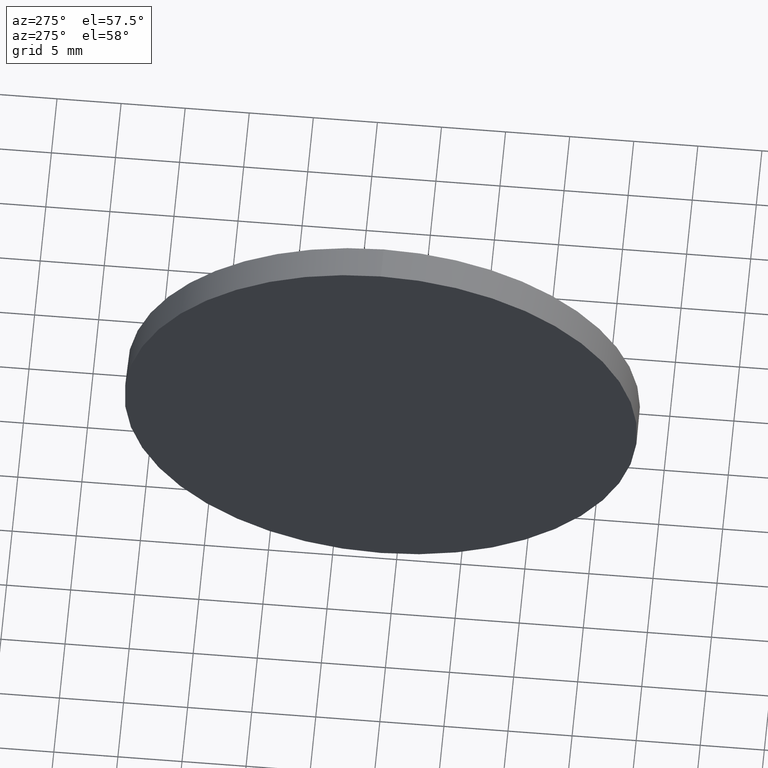
[diagram: clean part render]
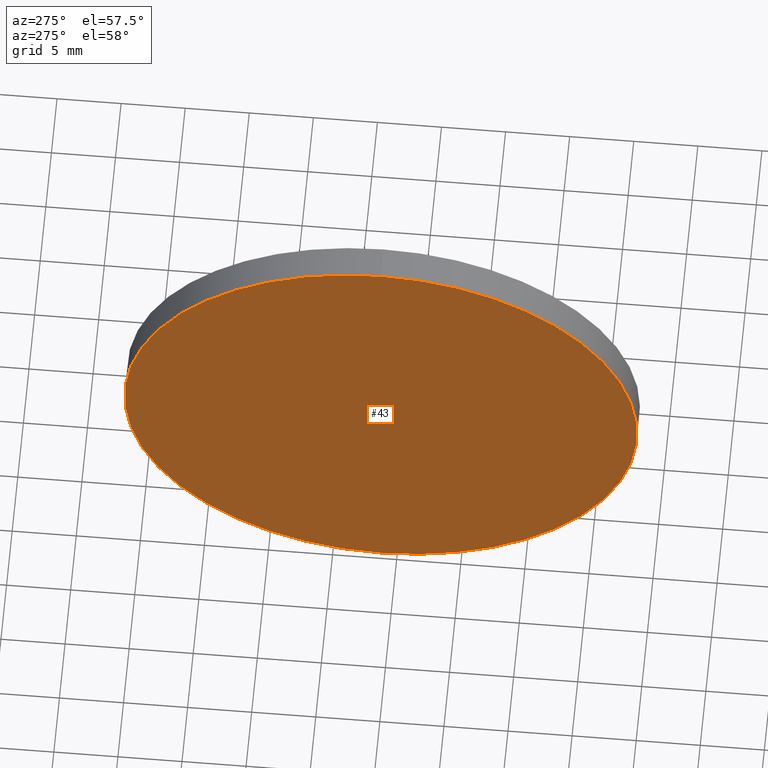
[diagram: same view with one face highlighted and labeled with its STEP entity id]
A machine part, auxiliary view. The second image highlights one B-rep face of the part: STEP entity #43.
In plain terms, the highlighted planar face has unit normal (1, 0, 0).
Its self-contained STEP definition (entity closure, byte-faithful):
#6 = AXIS2_PLACEMENT_3D ( 'NONE', #131, #169, #168 ) ;
#9 = CIRCLE ( 'NONE', #6, 19.99999999999998900 ) ;
#14 = CARTESIAN_POINT ( 'NONE',  ( 569.9530136737812400, 216.2326757458980900, 0.0000000000000000000 ) ) ;
#33 = AXIS2_PLACEMENT_3D ( 'NONE', #14, #115, #101 ) ;
#43 = ADVANCED_FACE ( 'NONE', ( #61 ), #68, .F. ) ;
#59 = DIRECTION ( 'NONE',  ( 0.0000000000000000000, 0.0000000000000000000, 1.000000000000000000 ) ) ;
#61 = FACE_OUTER_BOUND ( 'NONE', #75, .T. ) ;
#63 = VERTEX_POINT ( 'NONE', #154 ) ;
#64 = EDGE_CURVE ( 'NONE', #63, #140, #133, .T. ) ;
#68 = PLANE ( 'NONE',  #33 ) ;
#75 = EDGE_LOOP ( 'NONE', ( #81, #86 ) ) ;
#76 = AXIS2_PLACEMENT_3D ( 'NONE', #182, #88, #59 ) ;
#80 = EDGE_CURVE ( 'NONE', #140, #63, #9, .T. ) ;
#81 = ORIENTED_EDGE ( 'NONE', *, *, #80, .T. ) ;
#86 = ORIENTED_EDGE ( 'NONE', *, *, #64, .T. ) ;
#88 = DIRECTION ( 'NONE',  ( -1.000000000000000000, -0.0000000000000000000, -0.0000000000000000000 ) ) ;
#101 = DIRECTION ( 'NONE',  ( 0.0000000000000000000, 0.0000000000000000000, -1.000000000000000000 ) ) ;
#115 = DIRECTION ( 'NONE',  ( 1.000000000000000000, 0.0000000000000000000, 0.0000000000000000000 ) ) ;
#131 = CARTESIAN_POINT ( 'NONE',  ( 569.9530136737812400, 216.2326757458980900, 0.0000000000000000000 ) ) ;
#132 = CARTESIAN_POINT ( 'NONE',  ( 569.9530136737812400, 216.2326757458980900, 19.99999999999998900 ) ) ;
#133 = CIRCLE ( 'NONE', #76, 19.99999999999998900 ) ;
#140 = VERTEX_POINT ( 'NONE', #132 ) ;
#154 = CARTESIAN_POINT ( 'NONE',  ( 569.9530136737812400, 216.2326757458980900, -19.99999999999998900 ) ) ;
#168 = DIRECTION ( 'NONE',  ( 0.0000000000000000000, 0.0000000000000000000, 1.000000000000000000 ) ) ;
#169 = DIRECTION ( 'NONE',  ( -1.000000000000000000, -0.0000000000000000000, -0.0000000000000000000 ) ) ;
#182 = CARTESIAN_POINT ( 'NONE',  ( 569.9530136737812400, 216.2326757458980900, 0.0000000000000000000 ) ) ;